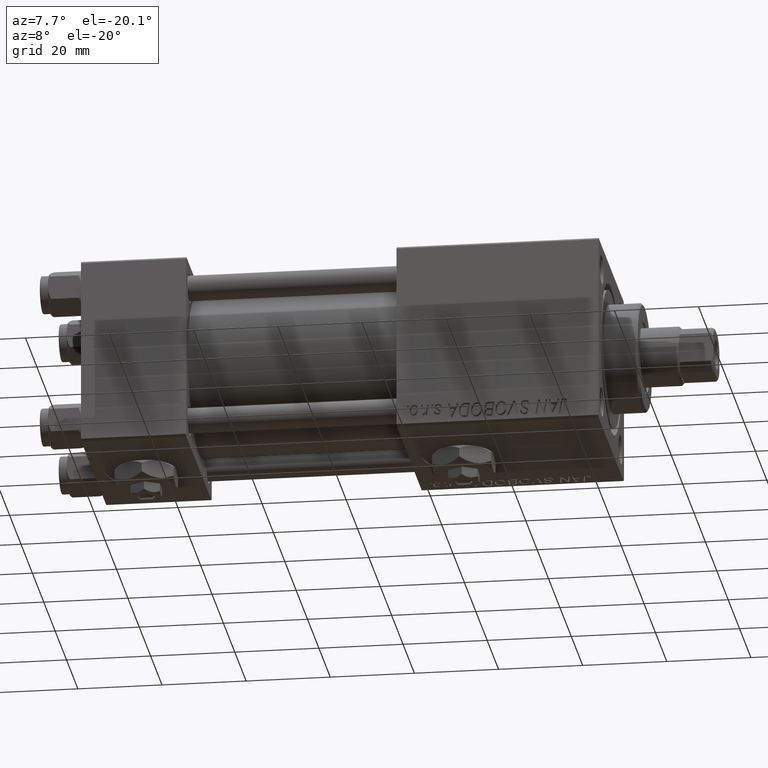
[diagram: clean part render]
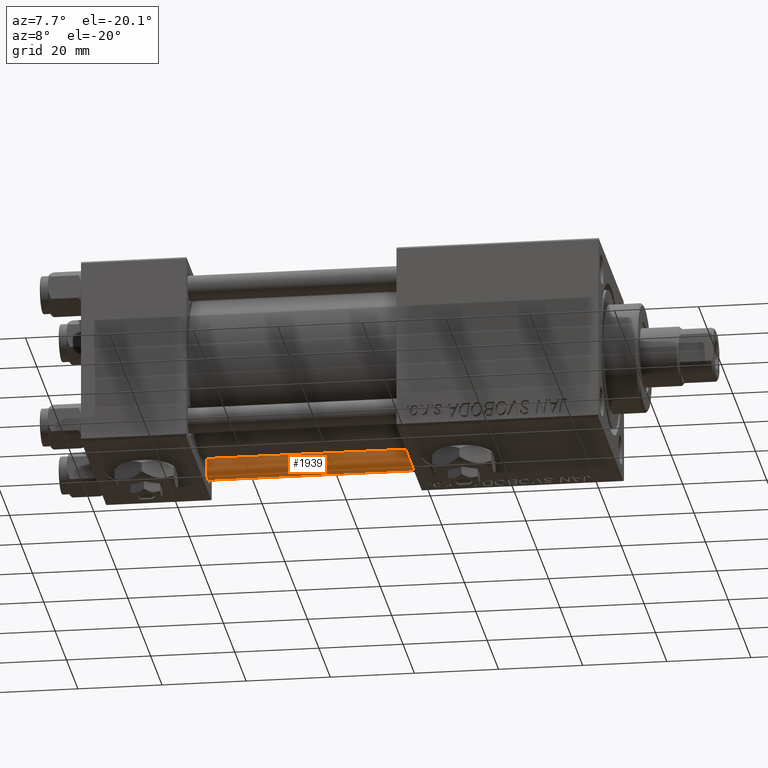
[diagram: same view with one face highlighted and labeled with its STEP entity id]
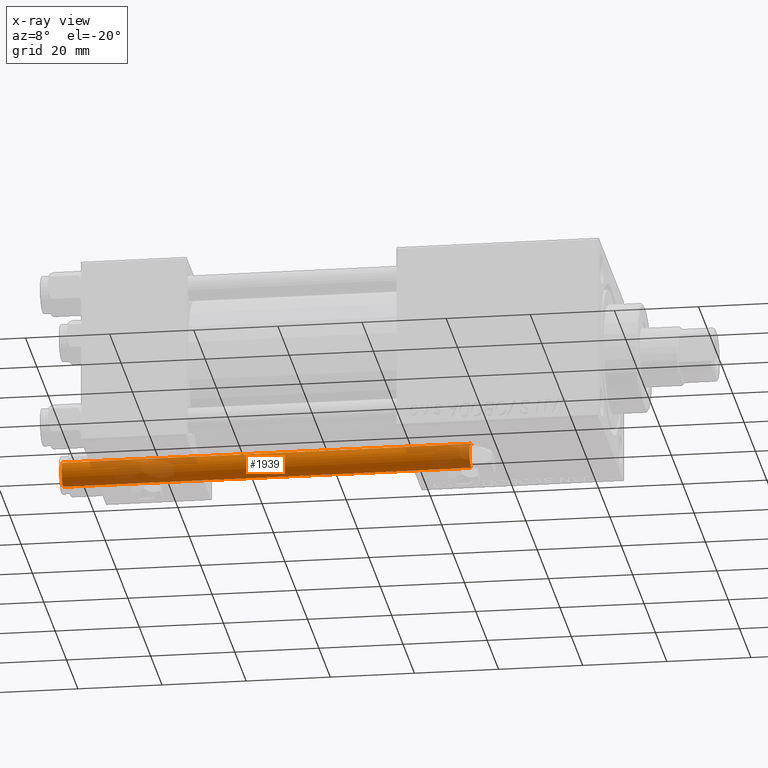
[diagram: x-ray of the same camera — body ghosted, the highlighted face saturated]
A machine part, auxiliary view. The second image highlights one B-rep face of the part: STEP entity #1939.
The next image is the same camera in x-ray: the body ghosted, the highlighted face saturated — about 29% of this face is hidden behind the body in this view.
In plain terms, the highlighted cylindrical surface (edge-blend (fillet) strip) has radius 3 mm, axis along (1, -0, 0).
Its self-contained STEP definition (entity closure, byte-faithful):
#1095 = CARTESIAN_POINT ( 'NONE',  ( 0.000000000000000000, 0.000000000000000000, 0.5000000000000281997 ) ) ;
#1939 = ADVANCED_FACE ( 'NONE', ( #18129 ), #5737, .T. ) ;
#2261 = CARTESIAN_POINT ( 'NONE',  ( 3.000000000000000444, 3.673940397442060361E-16, 97.50000000000001421 ) ) ;
#5225 = CARTESIAN_POINT ( 'NONE',  ( 0.000000000000000000, 0.000000000000000000, 98.00000000000000000 ) ) ;
#5737 = CYLINDRICAL_SURFACE ( 'NONE', #25459, 3.000000000000000444 ) ;
#6475 = CIRCLE ( 'NONE', #14043, 3.000000000000000444 ) ;
#8741 = DIRECTION ( 'NONE',  ( 1.000000000000000000, 0.000000000000000000, 0.000000000000000000 ) ) ;
#10811 = EDGE_CURVE ( 'NONE', #49978, #17674, #30064, .T. ) ;
#11430 = EDGE_CURVE ( 'NONE', #17674, #19890, #17503, .T. ) ;
#13283 = CARTESIAN_POINT ( 'NONE',  ( -3.000000000000000444, 0.000000000000000000, 98.00000000000000000 ) ) ;
#14043 = AXIS2_PLACEMENT_3D ( 'NONE', #1095, #45668, #8741 ) ;
#14165 = DIRECTION ( 'NONE',  ( -1.000000000000000000, 0.000000000000000000, 0.000000000000000000 ) ) ;
#14954 = VERTEX_POINT ( 'NONE', #47069 ) ;
#15395 = ORIENTED_EDGE ( 'NONE', *, *, #16105, .F. ) ;
#16105 = EDGE_CURVE ( 'NONE', #49978, #14954, #47839, .T. ) ;
#17503 = LINE ( 'NONE', #13283, #39336 ) ;
#17674 = VERTEX_POINT ( 'NONE', #39283 ) ;
#18129 = FACE_OUTER_BOUND ( 'NONE', #40829, .T. ) ;
#19890 = VERTEX_POINT ( 'NONE', #23092 ) ;
#22056 = ORIENTED_EDGE ( 'NONE', *, *, #11430, .T. ) ;
#22496 = AXIS2_PLACEMENT_3D ( 'NONE', #43604, #50993, #34877 ) ;
#23092 = CARTESIAN_POINT ( 'NONE',  ( -3.000000000000000444, 0.000000000000000000, 0.5000000000000281997 ) ) ;
#23569 = DIRECTION ( 'NONE',  ( -0.000000000000000000, -0.000000000000000000, -1.000000000000000000 ) ) ;
#25459 = AXIS2_PLACEMENT_3D ( 'NONE', #5225, #29752, #14165 ) ;
#29752 = DIRECTION ( 'NONE',  ( -0.000000000000000000, -0.000000000000000000, -1.000000000000000000 ) ) ;
#30064 = CIRCLE ( 'NONE', #22496, 3.000000000000000444 ) ;
#34877 = DIRECTION ( 'NONE',  ( 1.000000000000000000, 0.000000000000000000, 0.000000000000000000 ) ) ;
#36781 = DIRECTION ( 'NONE',  ( -0.000000000000000000, -0.000000000000000000, -1.000000000000000000 ) ) ;
#39283 = CARTESIAN_POINT ( 'NONE',  ( -3.000000000000000444, 0.000000000000000000, 97.50000000000001421 ) ) ;
#39336 = VECTOR ( 'NONE', #36781, 1000.000000000000000 ) ;
#39921 = CARTESIAN_POINT ( 'NONE',  ( 3.000000000000000444, 3.673940397442060361E-16, 98.00000000000000000 ) ) ;
#40829 = EDGE_LOOP ( 'NONE', ( #15395, #49430, #22056, #43570 ) ) ;
#43570 = ORIENTED_EDGE ( 'NONE', *, *, #48433, .T. ) ;
#43604 = CARTESIAN_POINT ( 'NONE',  ( 0.000000000000000000, 0.000000000000000000, 97.50000000000001421 ) ) ;
#45095 = VECTOR ( 'NONE', #23569, 1000.000000000000000 ) ;
#45668 = DIRECTION ( 'NONE',  ( -0.000000000000000000, -0.000000000000000000, 1.000000000000000000 ) ) ;
#47069 = CARTESIAN_POINT ( 'NONE',  ( 3.000000000000000444, 3.673940397442060361E-16, 0.5000000000000281997 ) ) ;
#47839 = LINE ( 'NONE', #39921, #45095 ) ;
#48433 = EDGE_CURVE ( 'NONE', #19890, #14954, #6475, .T. ) ;
#49430 = ORIENTED_EDGE ( 'NONE', *, *, #10811, .T. ) ;
#49978 = VERTEX_POINT ( 'NONE', #2261 ) ;
#50993 = DIRECTION ( 'NONE',  ( 0.000000000000000000, 0.000000000000000000, -1.000000000000000000 ) ) ;